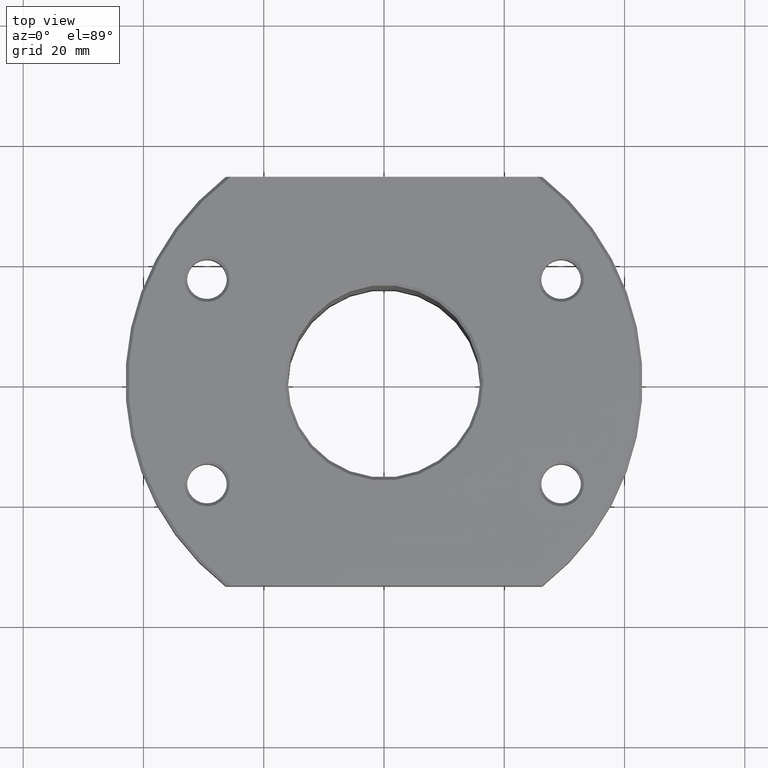
[diagram: clean part render]
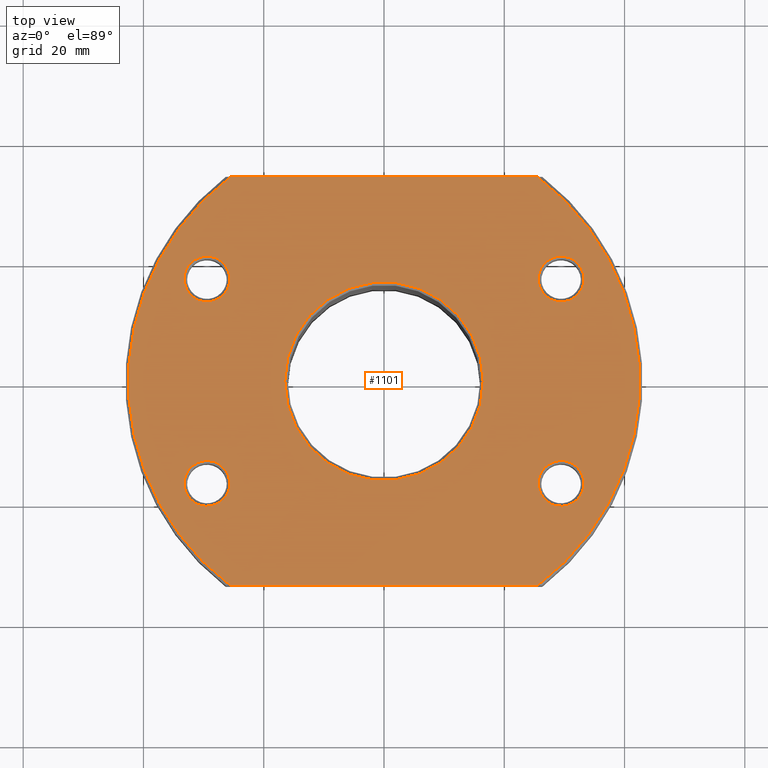
[diagram: same view with one face highlighted and labeled with its STEP entity id]
A machine part, top view. The second image highlights one B-rep face of the part: STEP entity #1101.
In plain terms, the highlighted planar face has unit normal (0, 0, 1).
Its self-contained STEP definition (entity closure, byte-faithful):
#285=AXIS2_PLACEMENT_3D('Circle Axis2P3D',#283,#284,$) ;
#316=AXIS2_PLACEMENT_3D('Circle Axis2P3D',#314,#315,$) ;
#452=AXIS2_PLACEMENT_3D('Circle Axis2P3D',#450,#451,$) ;
#476=AXIS2_PLACEMENT_3D('Circle Axis2P3D',#474,#475,$) ;
#605=AXIS2_PLACEMENT_3D('Circle Axis2P3D',#603,#604,$) ;
#629=AXIS2_PLACEMENT_3D('Circle Axis2P3D',#627,#628,$) ;
#758=AXIS2_PLACEMENT_3D('Circle Axis2P3D',#756,#757,$) ;
#782=AXIS2_PLACEMENT_3D('Circle Axis2P3D',#780,#781,$) ;
#911=AXIS2_PLACEMENT_3D('Circle Axis2P3D',#909,#910,$) ;
#935=AXIS2_PLACEMENT_3D('Circle Axis2P3D',#933,#934,$) ;
#952=AXIS2_PLACEMENT_3D('Circle Axis2P3D',#950,#951,$) ;
#1054=AXIS2_PLACEMENT_3D('Plane Axis2P3D',#1051,#1052,#1053) ;
#1072=AXIS2_PLACEMENT_3D('Circle Axis2P3D',#1070,#1071,$) ;
#280=CARTESIAN_POINT('Vertex',(-16.5,-1.20246274937E-008,53.)) ;
#283=CARTESIAN_POINT('Axis2P3D Location',(-2.22044604925E-015,-3.5527136788E-015,53.)) ;
#287=CARTESIAN_POINT('Vertex',(16.5,-2.70893333806E-015,53.)) ;
#314=CARTESIAN_POINT('Axis2P3D Location',(1.33226762955E-015,-3.5527136788E-015,53.)) ;
#447=CARTESIAN_POINT('Vertex',(-32.7357601413,18.9000002109,53.)) ;
#450=CARTESIAN_POINT('Axis2P3D Location',(-29.4448637287,17.,53.)) ;
#454=CARTESIAN_POINT('Vertex',(-26.1539671943,15.1,53.)) ;
#474=CARTESIAN_POINT('Axis2P3D Location',(-29.4448637287,17.,53.)) ;
#600=CARTESIAN_POINT('Vertex',(-32.7357603848,-18.8999997891,53.)) ;
#603=CARTESIAN_POINT('Axis2P3D Location',(-29.4448637287,-17.,53.)) ;
#607=CARTESIAN_POINT('Vertex',(-26.1539671943,-15.1,53.)) ;
#627=CARTESIAN_POINT('Axis2P3D Location',(-29.4448637287,-17.,53.)) ;
#753=CARTESIAN_POINT('Vertex',(32.7357603848,18.8999997891,53.)) ;
#756=CARTESIAN_POINT('Axis2P3D Location',(29.4448637287,17.,53.)) ;
#760=CARTESIAN_POINT('Vertex',(26.1539671943,15.1,53.)) ;
#780=CARTESIAN_POINT('Axis2P3D Location',(29.4448637287,17.,53.)) ;
#906=CARTESIAN_POINT('Vertex',(32.7357601413,-18.9000002109,53.)) ;
#909=CARTESIAN_POINT('Axis2P3D Location',(29.4448637287,-17.,53.)) ;
#913=CARTESIAN_POINT('Vertex',(26.1539671943,-15.1,53.)) ;
#933=CARTESIAN_POINT('Axis2P3D Location',(29.4448637287,-17.,53.)) ;
#950=CARTESIAN_POINT('Axis2P3D Location',(-7.10542735766E-015,1.41820777071E-015,53.)) ;
#954=CARTESIAN_POINT('Vertex',(25.5,-34.,53.)) ;
#956=CARTESIAN_POINT('Vertex',(25.5,34.,53.)) ;
#1051=CARTESIAN_POINT('Axis2P3D Location',(0.,0.,53.)) ;
#1056=CARTESIAN_POINT('Line Origine',(0.,-34.,53.)) ;
#1060=CARTESIAN_POINT('Vertex',(-25.5,-34.,53.)) ;
#1063=CARTESIAN_POINT('Line Origine',(3.5527136788E-015,34.,53.)) ;
#1067=CARTESIAN_POINT('Vertex',(-25.5,34.,53.)) ;
#1070=CARTESIAN_POINT('Axis2P3D Location',(7.1054273576E-015,3.26697790257E-015,53.)) ;
#284=DIRECTION('Axis2P3D Direction',(8.48074403961E-016,2.19646310517E-015,1.)) ;
#315=DIRECTION('Axis2P3D Direction',(3.90359153431E-030,-1.42108547152E-014,1.)) ;
#451=DIRECTION('Axis2P3D Direction',(4.99032166702E-014,6.74973353837E-014,1.)) ;
#475=DIRECTION('Axis2P3D Direction',(1.81051704214E-013,3.13590750496E-013,1.)) ;
#604=DIRECTION('Axis2P3D Direction',(-3.32830462944E-014,7.64612826923E-014,1.)) ;
#628=DIRECTION('Axis2P3D Direction',(-1.80295640838E-013,3.12281210315E-013,1.)) ;
#757=DIRECTION('Axis2P3D Direction',(3.32830462923E-014,-7.64612826902E-014,1.)) ;
#781=DIRECTION('Axis2P3D Direction',(1.78519283999E-013,-3.09204470017E-013,1.)) ;
#910=DIRECTION('Axis2P3D Direction',(-5.66964899936E-014,-7.66856779237E-014,1.)) ;
#934=DIRECTION('Axis2P3D Direction',(-1.81051704214E-013,-3.13590750496E-013,1.)) ;
#951=DIRECTION('Axis2P3D Direction',(-1.81251667153E-014,2.34032671201E-014,1.)) ;
#1052=DIRECTION('Axis2P3D Direction',(0.,0.,1.)) ;
#1053=DIRECTION('Axis2P3D XDirection',(1.,0.,0.)) ;
#1057=DIRECTION('Vector Direction',(1.,0.,0.)) ;
#1064=DIRECTION('Vector Direction',(1.,0.,0.)) ;
#1071=DIRECTION('Axis2P3D Direction',(0.,0.,1.)) ;
#1058=VECTOR('Line Direction',#1057,1.) ;
#1065=VECTOR('Line Direction',#1064,1.) ;
#1076=ORIENTED_EDGE('',*,*,#1062,.T.) ;
#1077=ORIENTED_EDGE('',*,*,#958,.T.) ;
#1078=ORIENTED_EDGE('',*,*,#1069,.T.) ;
#1079=ORIENTED_EDGE('',*,*,#1074,.T.) ;
#1082=ORIENTED_EDGE('',*,*,#937,.F.) ;
#1083=ORIENTED_EDGE('',*,*,#915,.F.) ;
#1086=ORIENTED_EDGE('',*,*,#784,.F.) ;
#1087=ORIENTED_EDGE('',*,*,#762,.F.) ;
#1090=ORIENTED_EDGE('',*,*,#631,.F.) ;
#1091=ORIENTED_EDGE('',*,*,#609,.F.) ;
#1094=ORIENTED_EDGE('',*,*,#478,.F.) ;
#1095=ORIENTED_EDGE('',*,*,#456,.F.) ;
#1098=ORIENTED_EDGE('',*,*,#318,.F.) ;
#1099=ORIENTED_EDGE('',*,*,#289,.F.) ;
#1084=FACE_BOUND('',#1081,.T.) ;
#1088=FACE_BOUND('',#1085,.T.) ;
#1092=FACE_BOUND('',#1089,.T.) ;
#1096=FACE_BOUND('',#1093,.T.) ;
#1100=FACE_BOUND('',#1097,.T.) ;
#1101=ADVANCED_FACE('',(#1080,#1084,#1088,#1092,#1096,#1100),#1055,.T.) ;
#286=CIRCLE('generated circle',#285,16.5) ;
#317=CIRCLE('generated circle',#316,16.5) ;
#453=CIRCLE('generated circle',#452,3.8) ;
#477=CIRCLE('generated circle',#476,3.8) ;
#606=CIRCLE('generated circle',#605,3.8) ;
#630=CIRCLE('generated circle',#629,3.8) ;
#759=CIRCLE('generated circle',#758,3.8) ;
#783=CIRCLE('generated circle',#782,3.8) ;
#912=CIRCLE('generated circle',#911,3.8) ;
#936=CIRCLE('generated circle',#935,3.8) ;
#953=CIRCLE('generated circle',#952,42.5) ;
#1073=CIRCLE('generated circle',#1072,42.5) ;
#289=EDGE_CURVE('',#281,#288,#286,.T.) ;
#318=EDGE_CURVE('',#288,#281,#317,.T.) ;
#456=EDGE_CURVE('',#448,#455,#453,.T.) ;
#478=EDGE_CURVE('',#455,#448,#477,.T.) ;
#609=EDGE_CURVE('',#601,#608,#606,.T.) ;
#631=EDGE_CURVE('',#608,#601,#630,.T.) ;
#762=EDGE_CURVE('',#754,#761,#759,.T.) ;
#784=EDGE_CURVE('',#761,#754,#783,.T.) ;
#915=EDGE_CURVE('',#907,#914,#912,.T.) ;
#937=EDGE_CURVE('',#914,#907,#936,.T.) ;
#958=EDGE_CURVE('',#955,#957,#953,.T.) ;
#1062=EDGE_CURVE('',#1061,#955,#1059,.T.) ;
#1069=EDGE_CURVE('',#957,#1068,#1066,.F.) ;
#1074=EDGE_CURVE('',#1068,#1061,#1073,.T.) ;
#1075=EDGE_LOOP('',(#1076,#1077,#1078,#1079)) ;
#1081=EDGE_LOOP('',(#1082,#1083)) ;
#1085=EDGE_LOOP('',(#1086,#1087)) ;
#1089=EDGE_LOOP('',(#1090,#1091)) ;
#1093=EDGE_LOOP('',(#1094,#1095)) ;
#1097=EDGE_LOOP('',(#1098,#1099)) ;
#1080=FACE_OUTER_BOUND('',#1075,.T.) ;
#1059=LINE('Line',#1056,#1058) ;
#1066=LINE('Line',#1063,#1065) ;
#1055=PLANE('Plane',#1054) ;
#281=VERTEX_POINT('',#280) ;
#288=VERTEX_POINT('',#287) ;
#448=VERTEX_POINT('',#447) ;
#455=VERTEX_POINT('',#454) ;
#601=VERTEX_POINT('',#600) ;
#608=VERTEX_POINT('',#607) ;
#754=VERTEX_POINT('',#753) ;
#761=VERTEX_POINT('',#760) ;
#907=VERTEX_POINT('',#906) ;
#914=VERTEX_POINT('',#913) ;
#955=VERTEX_POINT('',#954) ;
#957=VERTEX_POINT('',#956) ;
#1061=VERTEX_POINT('',#1060) ;
#1068=VERTEX_POINT('',#1067) ;